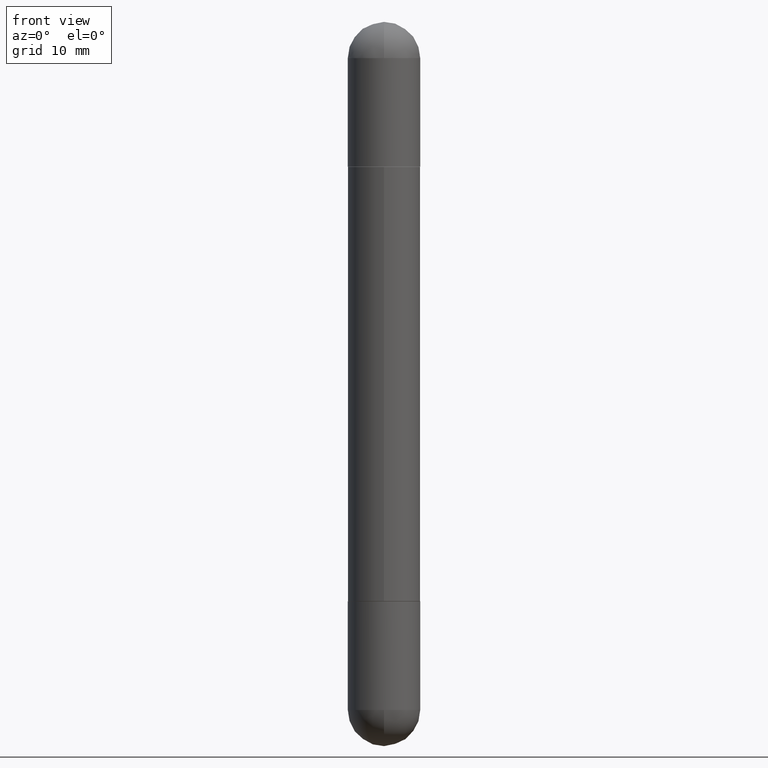
[diagram: clean part render]
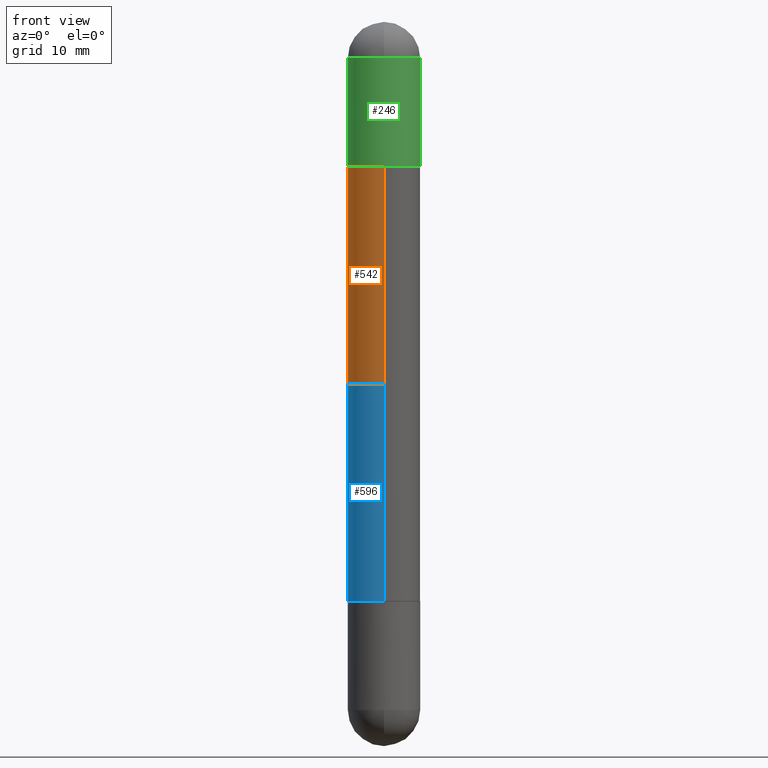
[diagram: same view with three faces highlighted in distinct colors, each labeled with its STEP entity id]
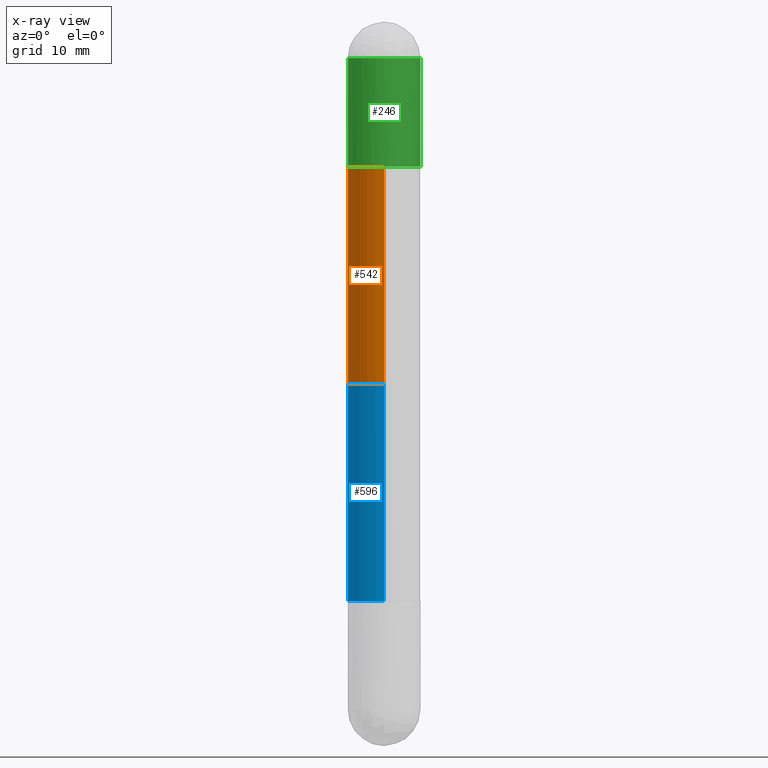
[diagram: x-ray of the same camera — body ghosted, the three highlighted faces saturated]
A machine part, front view with three faces highlighted in distinct colors.
The next image is the same camera in x-ray (body ghosted, the three faces saturated) — at least one of them is partly hidden behind the body in this view.
Their STEP definitions:

[orange] entity #542 — the highlighted cylindrical surface (edge-blend (fillet) strip) has radius 3.175 mm, axis along (-0, 0, -1).
#1 = CYLINDRICAL_SURFACE ( 'NONE', #696, 0.1250000000000001388 ) ;
#13 = DIRECTION ( 'NONE',  ( -6.982962677686265922E-15, -1.000000000000000000, -4.370956789862816416E-15 ) ) ;
#14 = DIRECTION ( 'NONE',  ( 2.444981061416011497E-29, -3.492179817113241133E-15, 1.000000000000000000 ) ) ;
#19 = DIRECTION ( 'NONE',  ( -1.000000000000000000, 0.000000000000000000, 0.000000000000000000 ) ) ;
#21 = VECTOR ( 'NONE', #397, 39.37007874015748143 ) ;
#26 = CARTESIAN_POINT ( 'NONE',  ( 4.887517141770606261E-29, -6.980867454409367060E-15, -0.5010000000000010001 ) ) ;
#83 = CARTESIAN_POINT ( 'NONE',  ( -8.728703347107364016E-16, -0.1250000000000072720, -0.5010000000000014442 ) ) ;
#124 = EDGE_CURVE ( 'NONE', #726, #272, #733, .T. ) ;
#138 = DIRECTION ( 'NONE',  ( -6.982962677686265922E-15, -1.000000000000000000, -3.278217592397108762E-15 ) ) ;
#143 = LINE ( 'NONE', #583, #21 ) ;
#164 = EDGE_CURVE ( 'NONE', #212, #196, #420, .T. ) ;
#166 = CARTESIAN_POINT ( 'NONE',  ( -8.728703347107444874E-16, -0.1250000000000044964, -1.250000000000000222 ) ) ;
#183 = EDGE_CURVE ( 'NONE', #212, #272, #143, .T. ) ;
#196 = VERTEX_POINT ( 'NONE', #83 ) ;
#212 = VERTEX_POINT ( 'NONE', #649 ) ;
#215 = EDGE_LOOP ( 'NONE', ( #523, #401, #752, #306 ) ) ;
#231 = CARTESIAN_POINT ( 'NONE',  ( 8.575622497214909463E-16, 0.1249999999999957673, -1.250000000000000222 ) ) ;
#255 = DIRECTION ( 'NONE',  ( -2.444981061416011497E-29, 3.492179817113241133E-15, -1.000000000000000000 ) ) ;
#272 = VERTEX_POINT ( 'NONE', #231 ) ;
#306 = ORIENTED_EDGE ( 'NONE', *, *, #695, .F. ) ;
#350 = CARTESIAN_POINT ( 'NONE',  ( -8.728703347107842263E-16, -0.1250000000000001388, -2.500000000000001332 ) ) ;
#382 = AXIS2_PLACEMENT_3D ( 'NONE', #571, #702, #19 ) ;
#397 = DIRECTION ( 'NONE',  ( -2.444981061416011497E-29, 3.492179817113241133E-15, -1.000000000000000000 ) ) ;
#401 = ORIENTED_EDGE ( 'NONE', *, *, #183, .T. ) ;
#420 = CIRCLE ( 'NONE', #698, 0.1250000000000002776 ) ;
#472 = VECTOR ( 'NONE', #535, 39.37007874015748143 ) ;
#506 = CARTESIAN_POINT ( 'NONE',  ( 0.000000000000000000, 0.000000000000000000, -2.500000000000000444 ) ) ;
#523 = ORIENTED_EDGE ( 'NONE', *, *, #164, .F. ) ;
#535 = DIRECTION ( 'NONE',  ( -2.444981061416011497E-29, 3.492179817113241133E-15, -1.000000000000000000 ) ) ;
#542 = ADVANCED_FACE ( 'NONE', ( #631 ), #1, .T. ) ;
#571 = CARTESIAN_POINT ( 'NONE',  ( 3.056226326770015212E-29, -4.365224771391552501E-15, -1.250000000000000222 ) ) ;
#583 = CARTESIAN_POINT ( 'NONE',  ( 8.575622497214423328E-16, 0.1250000000000001388, -2.500000000000000000 ) ) ;
#631 = FACE_OUTER_BOUND ( 'NONE', #215, .T. ) ;
#649 = CARTESIAN_POINT ( 'NONE',  ( 8.575622497214919324E-16, 0.1249999999999932693, -0.5010000000000006670 ) ) ;
#661 = LINE ( 'NONE', #350, #472 ) ;
#695 = EDGE_CURVE ( 'NONE', #196, #726, #661, .T. ) ;
#696 = AXIS2_PLACEMENT_3D ( 'NONE', #506, #255, #13 ) ;
#698 = AXIS2_PLACEMENT_3D ( 'NONE', #26, #14, #138 ) ;
#702 = DIRECTION ( 'NONE',  ( -0.000000000000000000, -0.000000000000000000, -1.000000000000000000 ) ) ;
#726 = VERTEX_POINT ( 'NONE', #166 ) ;
#733 = CIRCLE ( 'NONE', #382, 0.1250000000000001388 ) ;
#752 = ORIENTED_EDGE ( 'NONE', *, *, #124, .F. ) ;

[blue] entity #596 — the highlighted cylindrical surface (edge-blend (fillet) strip) has radius 3.175 mm, axis along (-0, 0, -1).
#11 = ORIENTED_EDGE ( 'NONE', *, *, #99, .F. ) ;
#82 = FACE_OUTER_BOUND ( 'NONE', #584, .T. ) ;
#99 = EDGE_CURVE ( 'NONE', #152, #811, #332, .T. ) ;
#110 = EDGE_CURVE ( 'NONE', #152, #477, #267, .T. ) ;
#130 = DIRECTION ( 'NONE',  ( -2.444981061416011497E-29, 3.492179817113241133E-15, -1.000000000000000000 ) ) ;
#152 = VERTEX_POINT ( 'NONE', #385 ) ;
#218 = DIRECTION ( 'NONE',  ( -2.444981061416011497E-29, 3.492179817113241133E-15, 1.000000000000000000 ) ) ;
#261 = DIRECTION ( 'NONE',  ( -6.982962677686265922E-15, -1.000000000000000000, -3.278217592397108762E-15 ) ) ;
#266 = CYLINDRICAL_SURFACE ( 'NONE', #278, 0.1250000000000001388 ) ;
#267 = LINE ( 'NONE', #328, #562 ) ;
#268 = VERTEX_POINT ( 'NONE', #467 ) ;
#269 = EDGE_CURVE ( 'NONE', #477, #268, #431, .T. ) ;
#271 = DIRECTION ( 'NONE',  ( 2.444981061416011497E-29, -3.492179817113241133E-15, 1.000000000000000000 ) ) ;
#273 = CARTESIAN_POINT ( 'NONE',  ( -8.728703347107842263E-16, -0.1250000000000001388, -2.500000000000001332 ) ) ;
#278 = AXIS2_PLACEMENT_3D ( 'NONE', #648, #130, #387 ) ;
#328 = CARTESIAN_POINT ( 'NONE',  ( 8.575622497214423328E-16, 0.1250000000000001388, -2.500000000000000000 ) ) ;
#332 = CIRCLE ( 'NONE', #593, 0.1250000000000002776 ) ;
#346 = AXIS2_PLACEMENT_3D ( 'NONE', #790, #218, #717 ) ;
#385 = CARTESIAN_POINT ( 'NONE',  ( 8.575622497214919324E-16, 0.1249999999999932693, -0.5010000000000006670 ) ) ;
#387 = DIRECTION ( 'NONE',  ( -6.982962677686265922E-15, -1.000000000000000000, -4.370956789862816416E-15 ) ) ;
#424 = ORIENTED_EDGE ( 'NONE', *, *, #269, .T. ) ;
#431 = CIRCLE ( 'NONE', #346, 0.1250000000000002776 ) ;
#444 = DIRECTION ( 'NONE',  ( -2.444981061416011497E-29, 3.492179817113241133E-15, -1.000000000000000000 ) ) ;
#450 = DIRECTION ( 'NONE',  ( -2.444981061416011497E-29, 3.492179817113241133E-15, -1.000000000000000000 ) ) ;
#467 = CARTESIAN_POINT ( 'NONE',  ( -8.728703347107363030E-16, -0.1250000000000072442, -1.998999999999999000 ) ) ;
#477 = VERTEX_POINT ( 'NONE', #751 ) ;
#532 = CARTESIAN_POINT ( 'NONE',  ( 4.887517141770606261E-29, -6.980867454409367060E-15, -0.5010000000000010001 ) ) ;
#554 = VECTOR ( 'NONE', #450, 39.37007874015748143 ) ;
#562 = VECTOR ( 'NONE', #444, 39.37007874015748143 ) ;
#581 = ORIENTED_EDGE ( 'NONE', *, *, #110, .T. ) ;
#584 = EDGE_LOOP ( 'NONE', ( #11, #581, #424, #718 ) ) ;
#585 = LINE ( 'NONE', #273, #554 ) ;
#593 = AXIS2_PLACEMENT_3D ( 'NONE', #532, #271, #261 ) ;
#596 = ADVANCED_FACE ( 'NONE', ( #82 ), #266, .T. ) ;
#623 = EDGE_CURVE ( 'NONE', #811, #268, #585, .T. ) ;
#648 = CARTESIAN_POINT ( 'NONE',  ( 0.000000000000000000, 0.000000000000000000, -2.500000000000000444 ) ) ;
#716 = CARTESIAN_POINT ( 'NONE',  ( -8.728703347107364016E-16, -0.1250000000000072720, -0.5010000000000014442 ) ) ;
#717 = DIRECTION ( 'NONE',  ( -6.982962677686265922E-15, -1.000000000000000000, 4.370956789862811683E-15 ) ) ;
#718 = ORIENTED_EDGE ( 'NONE', *, *, #623, .F. ) ;
#751 = CARTESIAN_POINT ( 'NONE',  ( 8.575622497214732956E-16, 0.1249999999999932693, -1.999000000000000110 ) ) ;
#790 = CARTESIAN_POINT ( 'NONE',  ( 4.887517141770606261E-29, -6.980867454409367060E-15, -1.998999999999999666 ) ) ;
#811 = VERTEX_POINT ( 'NONE', #716 ) ;

[green] entity #246 — the highlighted cylindrical surface (edge-blend (fillet) strip) has radius 3.175 mm, axis along (-0, 0, -1).
#3 = CARTESIAN_POINT ( 'NONE',  ( 5.807988414689700538E-29, -8.292268179752471696E-15, -0.1250000000000004441 ) ) ;
#6 = AXIS2_PLACEMENT_3D ( 'NONE', #447, #86, #73 ) ;
#22 = AXIS2_PLACEMENT_3D ( 'NONE', #731, #292, #788 ) ;
#33 = VERTEX_POINT ( 'NONE', #181 ) ;
#73 = DIRECTION ( 'NONE',  ( 1.000000000000000000, -6.982962677686270655E-15, 0.000000000000000000 ) ) ;
#86 = DIRECTION ( 'NONE',  ( 2.445468806185136597E-29, -3.491481338843145583E-15, 1.000000000000000000 ) ) ;
#98 = EDGE_LOOP ( 'NONE', ( #793, #322, #299, #433, #587 ) ) ;
#100 = VECTOR ( 'NONE', #662, 39.37007874015748143 ) ;
#114 = LINE ( 'NONE', #173, #119 ) ;
#119 = VECTOR ( 'NONE', #367, 39.37007874015748143 ) ;
#156 = VERTEX_POINT ( 'NONE', #448 ) ;
#170 = VERTEX_POINT ( 'NONE', #341 ) ;
#173 = CARTESIAN_POINT ( 'NONE',  ( -0.1250000000000000000, 8.575622497214414453E-16, -2.500000000000000444 ) ) ;
#181 = CARTESIAN_POINT ( 'NONE',  ( -0.1250000000000000000, -6.780053178997939591E-15, -0.5000000000000006661 ) ) ;
#202 = CARTESIAN_POINT ( 'NONE',  ( 0.1250000000000000000, -7.855833012397075293E-15, -0.5000000000000006661 ) ) ;
#225 = DIRECTION ( 'NONE',  ( -2.445468806185136597E-29, 3.491481338843145583E-15, -1.000000000000000000 ) ) ;
#246 = ADVANCED_FACE ( 'NONE', ( #403 ), #722, .T. ) ;
#274 = EDGE_CURVE ( 'NONE', #170, #529, #732, .T. ) ;
#292 = DIRECTION ( 'NONE',  ( 2.445468806185136597E-29, -3.491481338843145583E-15, 1.000000000000000000 ) ) ;
#293 = AXIS2_PLACEMENT_3D ( 'NONE', #360, #225, #297 ) ;
#297 = DIRECTION ( 'NONE',  ( 1.000000000000000000, -6.982962677686266711E-15, 0.000000000000000000 ) ) ;
#299 = ORIENTED_EDGE ( 'NONE', *, *, #743, .T. ) ;
#322 = ORIENTED_EDGE ( 'NONE', *, *, #446, .T. ) ;
#324 = DIRECTION ( 'NONE',  ( 1.000000000000000000, -6.982962677686270655E-15, 0.000000000000000000 ) ) ;
#341 = CARTESIAN_POINT ( 'NONE',  ( 0.1250000000000000000, -8.510485763430165164E-15, -0.1250000000000004441 ) ) ;
#360 = CARTESIAN_POINT ( 'NONE',  ( 0.000000000000000000, 0.000000000000000000, -2.500000000000000444 ) ) ;
#367 = DIRECTION ( 'NONE',  ( -2.445468806185136877E-29, 3.491481338843145188E-15, -1.000000000000000000 ) ) ;
#403 = FACE_OUTER_BOUND ( 'NONE', #98, .T. ) ;
#417 = CIRCLE ( 'NONE', #487, 0.1250000000000000000 ) ;
#433 = ORIENTED_EDGE ( 'NONE', *, *, #274, .F. ) ;
#435 = VERTEX_POINT ( 'NONE', #679 ) ;
#446 = EDGE_CURVE ( 'NONE', #156, #33, #114, .T. ) ;
#447 = CARTESIAN_POINT ( 'NONE',  ( 5.807988414689700538E-29, -8.292268179752471696E-15, -0.1250000000000004441 ) ) ;
#448 = CARTESIAN_POINT ( 'NONE',  ( -0.1250000000000000000, -6.780053178997941168E-15, -0.1250000000000004441 ) ) ;
#484 = CARTESIAN_POINT ( 'NONE',  ( 0.1250000000000000000, -8.728703347107833388E-16, -2.500000000000000444 ) ) ;
#487 = AXIS2_PLACEMENT_3D ( 'NONE', #3, #644, #324 ) ;
#529 = VERTEX_POINT ( 'NONE', #202 ) ;
#572 = EDGE_CURVE ( 'NONE', #156, #435, #417, .T. ) ;
#587 = ORIENTED_EDGE ( 'NONE', *, *, #606, .F. ) ;
#606 = EDGE_CURVE ( 'NONE', #435, #170, #681, .T. ) ;
#644 = DIRECTION ( 'NONE',  ( 2.445468806185136597E-29, -3.491481338843145583E-15, 1.000000000000000000 ) ) ;
#662 = DIRECTION ( 'NONE',  ( -2.445468806185136877E-29, 3.491481338843145188E-15, -1.000000000000000000 ) ) ;
#679 = CARTESIAN_POINT ( 'NONE',  ( -8.575622497213856334E-16, -0.1250000000000086320, -0.1250000000000008882 ) ) ;
#681 = CIRCLE ( 'NONE', #6, 0.1250000000000000000 ) ;
#721 = CIRCLE ( 'NONE', #22, 0.1250000000000000000 ) ;
#722 = CYLINDRICAL_SURFACE ( 'NONE', #293, 0.1250000000000000000 ) ;
#731 = CARTESIAN_POINT ( 'NONE',  ( 4.890937612370273194E-29, -6.982962677686291165E-15, -0.5000000000000006661 ) ) ;
#732 = LINE ( 'NONE', #484, #100 ) ;
#743 = EDGE_CURVE ( 'NONE', #33, #529, #721, .T. ) ;
#788 = DIRECTION ( 'NONE',  ( 1.000000000000000000, -6.982962677686270655E-15, 0.000000000000000000 ) ) ;
#793 = ORIENTED_EDGE ( 'NONE', *, *, #572, .F. ) ;